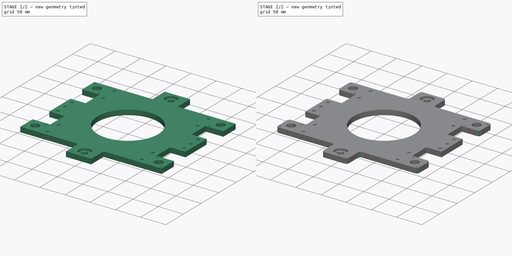
[diagram: build sequence overview — one tinted view per stage of 2, left to right]
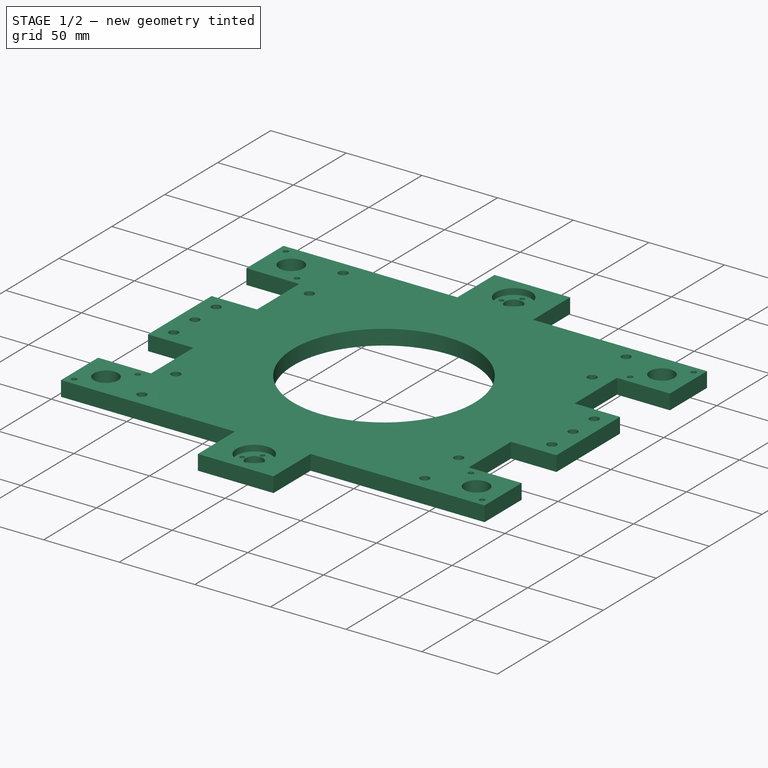
[diagram: stage 1 of 2 — iso view after this stage's code; geometry added in this stage tinted green]
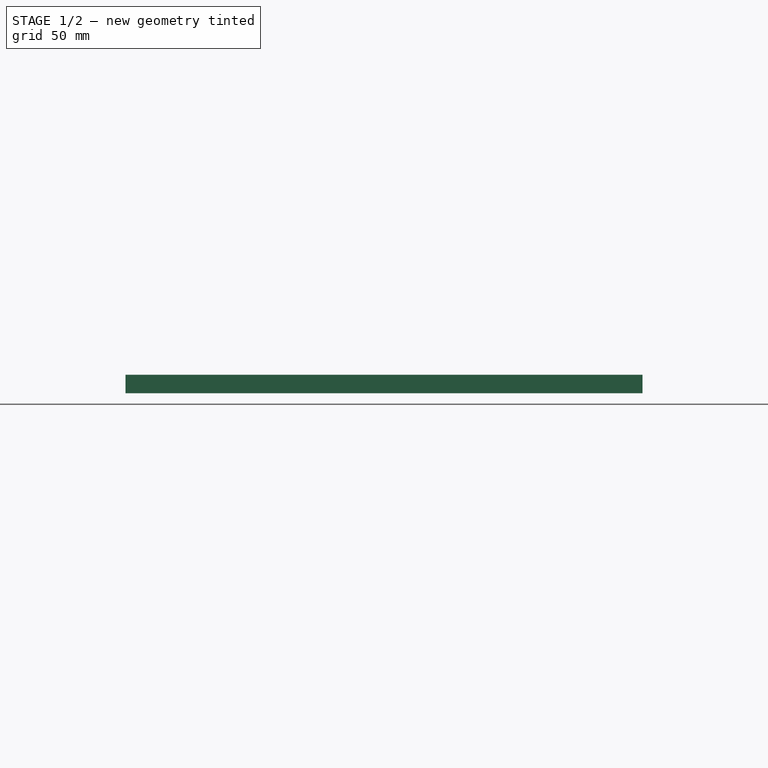
[diagram: stage 1 of 2 — front view after this stage's code; geometry added in this stage tinted green]
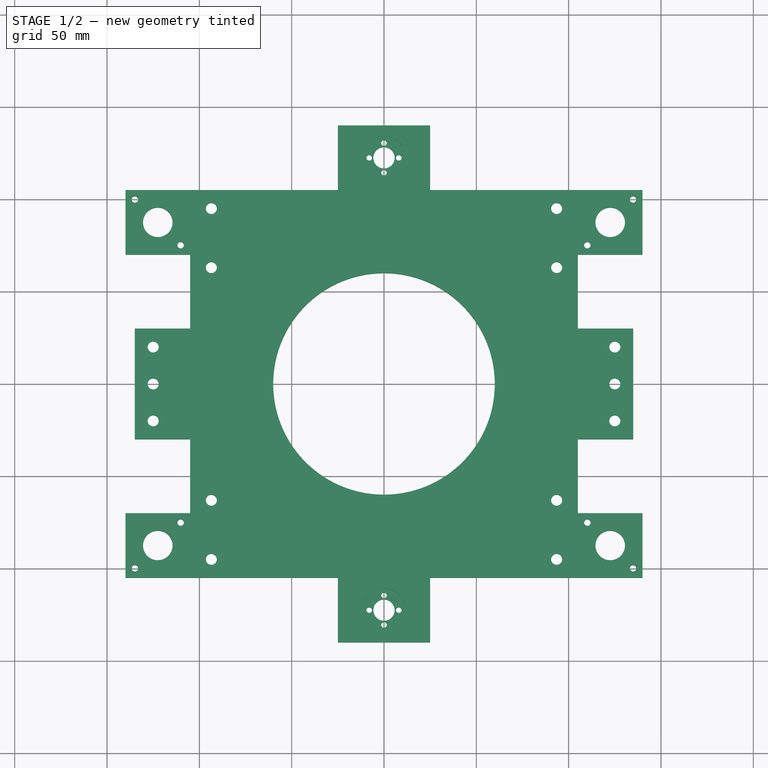
[diagram: stage 1 of 2 — top view after this stage's code; geometry added in this stage tinted green]
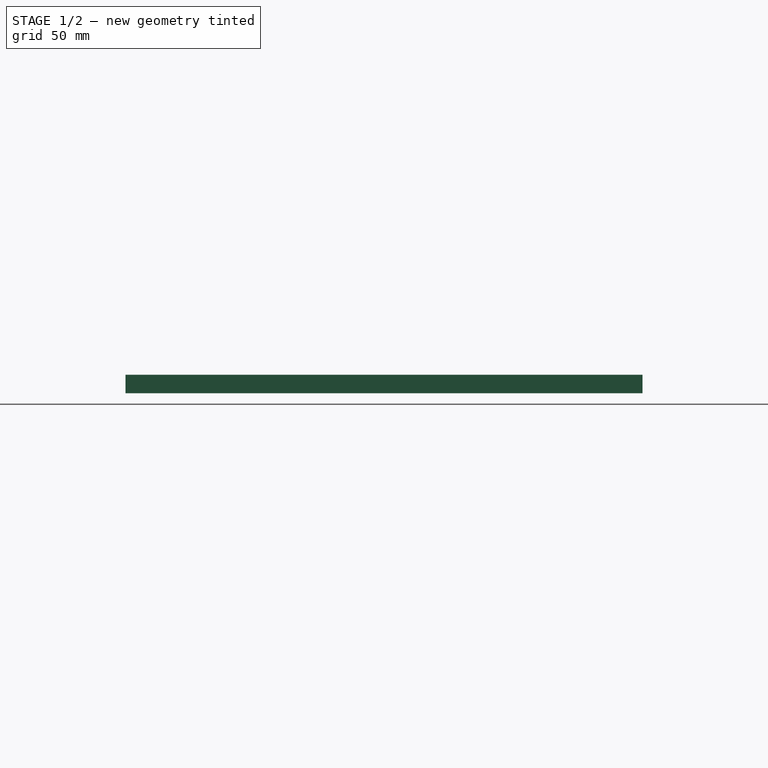
[diagram: stage 1 of 2 — right view after this stage's code; geometry added in this stage tinted green]
FCSTD DOCUMENT  (FreeCAD 1.0R39109 (Git))
Label: bass_slip
License: All rights reserved
LicenseURL: https://en.wikipedia.org/wiki/All_rights_reserved
objects: Sketcher::SketchObject×2, PartDesign::Pad×1, PartDesign::Pocket×1, PartDesign::Fillet×1, PartDesign::Body×1
note: 14 computed .brp shape members not serialized (recipe doc carries the construction recipe); baked Part::Feature solids carry a one-line shape summary decoded from their .brp

FEATURE [Sketcher::SketchObject] Sketch
  ArcFitTolerance = 1e-06
  AttachmentSupport = -> [XY_Plane]
  FullyConstrained = true
  MakeInternals = false
  MapMode = 5
  sketch-geometry (83):
    g0: LineSegment StartX=-105 StartY=70 StartZ=0 EndX=-105 EndY=30 EndZ=0
    g1: LineSegment StartX=-105 StartY=-105 StartZ=0 EndX=-25 EndY=-105 EndZ=0
    g2: LineSegment StartX=105 StartY=-70 StartZ=0 EndX=105 EndY=-30 EndZ=0
    g3: LineSegment StartX=105 StartY=105 StartZ=0 EndX=25 EndY=105 EndZ=0
    g4: Circle CenterX=0 CenterY=0 CenterZ=0 NormalX=0 NormalY=0 NormalZ=1 AngleXU=0 Radius=60
    g5: Circle CenterX=93.5 CenterY=95 CenterZ=0 NormalX=0 NormalY=0 NormalZ=1 AngleXU=0 Radius=3
    g6: Circle CenterX=93.5 CenterY=63 CenterZ=0 NormalX=0 NormalY=0 NormalZ=1 AngleXU=0 Radius=3
    g7: Circle CenterX=93.5 CenterY=-63 CenterZ=0 NormalX=0 NormalY=0 NormalZ=1 AngleXU=0 Radius=3
    g8: Circle CenterX=93.5 CenterY=-95 CenterZ=0 NormalX=0 NormalY=0 NormalZ=1 AngleXU=0 Radius=3
    g9: Circle CenterX=-93.5 CenterY=-63 CenterZ=0 NormalX=0 NormalY=0 NormalZ=1 AngleXU=0 Radius=3
    g10: Circle CenterX=-93.5 CenterY=-95 CenterZ=0 NormalX=0 NormalY=0 NormalZ=1 AngleXU=0 Radius=3
    g11: Circle CenterX=-93.5 CenterY=95 CenterZ=0 NormalX=0 NormalY=0 NormalZ=1 AngleXU=0 Radius=3
    g12: Circle CenterX=-93.5 CenterY=63 CenterZ=0 NormalX=0 NormalY=0 NormalZ=1 AngleXU=0 Radius=3
    g13: LineSegment [constr] StartX=-93.5 StartY=95 StartZ=0 EndX=-93.5 EndY=-95 EndZ=0
    g14: LineSegment [constr] StartX=-93.5 StartY=-95 StartZ=0 EndX=93.5 EndY=-95 EndZ=0
    g15: LineSegment [constr] StartX=93.5 StartY=-95 StartZ=0 EndX=93.5 EndY=95 EndZ=0
    g16: LineSegment [constr] StartX=93.5 StartY=95 StartZ=0 EndX=-93.5 EndY=95 EndZ=0
    g17: LineSegment [constr] StartX=-93.5 StartY=63 StartZ=0 EndX=93.5 EndY=63 EndZ=0
    g18: LineSegment [constr] StartX=-93.5 StartY=-63 StartZ=0 EndX=93.5 EndY=-63 EndZ=0
    g19: LineSegment StartX=105 StartY=105 StartZ=0 EndX=140 EndY=105 EndZ=0
    g20: LineSegment StartX=140 StartY=105 StartZ=0 EndX=140 EndY=70 EndZ=0
    g21: LineSegment StartX=140 StartY=70 StartZ=0 EndX=105 EndY=70 EndZ=0
    g22: LineSegment StartX=105 StartY=-105 StartZ=0 EndX=140 EndY=-105 EndZ=0
    g23: LineSegment StartX=140 StartY=-105 StartZ=0 EndX=140 EndY=-70 EndZ=0
    g24: LineSegment StartX=140 StartY=-70 StartZ=0 EndX=105 EndY=-70 EndZ=0
    g25: LineSegment StartX=-105 StartY=-105 StartZ=0 EndX=-140 EndY=-105 EndZ=0
    g26: LineSegment StartX=-140 StartY=-105 StartZ=0 EndX=-140 EndY=-70 EndZ=0
    g27: LineSegment StartX=-140 StartY=-70 StartZ=0 EndX=-105 EndY=-70 EndZ=0
    g28: LineSegment StartX=-105 StartY=105 StartZ=0 EndX=-140 EndY=105 EndZ=0
    g29: LineSegment StartX=-140 StartY=105 StartZ=0 EndX=-140 EndY=70 EndZ=0
    g30: LineSegment StartX=-140 StartY=70 StartZ=0 EndX=-105 EndY=70 EndZ=0
    g31: Circle CenterX=122.5 CenterY=87.5 CenterZ=0 NormalX=0 NormalY=0 NormalZ=1 AngleXU=0 Radius=8
    g32: Circle CenterX=122.5 CenterY=-87.5 CenterZ=0 NormalX=0 NormalY=0 NormalZ=1 AngleXU=0 Radius=8
    g33: Circle CenterX=-122.5 CenterY=-87.5 CenterZ=0 NormalX=0 NormalY=0 NormalZ=1 AngleXU=0 Radius=8
    g34: Circle CenterX=-122.5 CenterY=87.5 CenterZ=0 NormalX=0 NormalY=0 NormalZ=1 AngleXU=0 Radius=8
    g35: LineSegment StartX=105 StartY=30 StartZ=0 EndX=135 EndY=30 EndZ=0
    g36: LineSegment StartX=135 StartY=30 StartZ=0 EndX=135 EndY=-30 EndZ=0
    g37: LineSegment StartX=135 StartY=-30 StartZ=0 EndX=105 EndY=-30 EndZ=0
    g38: LineSegment StartX=-105 StartY=30 StartZ=0 EndX=-135 EndY=30 EndZ=0
    g39: LineSegment StartX=-135 StartY=30 StartZ=0 EndX=-135 EndY=-30 EndZ=0
    g40: LineSegment StartX=-135 StartY=-30 StartZ=0 EndX=-105 EndY=-30 EndZ=0
    g41: LineSegment StartX=-105 StartY=-30 StartZ=0 EndX=-105 EndY=-70 EndZ=0
    g42: LineSegment StartX=105 StartY=30 StartZ=0 EndX=105 EndY=70 EndZ=0
    g43: Circle CenterX=125 CenterY=20 CenterZ=0 NormalX=0 NormalY=0 NormalZ=1 AngleXU=0 Radius=3
    g44: Circle CenterX=125 CenterY=0 CenterZ=0 NormalX=0 NormalY=0 NormalZ=1 AngleXU=0 Radius=3
    g45: Circle CenterX=125 CenterY=-20 CenterZ=0 NormalX=0 NormalY=0 NormalZ=1 AngleXU=0 Radius=3
    g46: Circle CenterX=-125 CenterY=20 CenterZ=0 NormalX=0 NormalY=0 NormalZ=1 AngleXU=0 Radius=3
    g47: Circle CenterX=-125 CenterY=0 CenterZ=0 NormalX=0 NormalY=0 NormalZ=1 AngleXU=0 Radius=3
    g48: Circle CenterX=-125 CenterY=-20 CenterZ=0 NormalX=0 NormalY=0 NormalZ=1 AngleXU=0 Radius=3
    g49: LineSegment [constr] StartX=-125 StartY=-20 StartZ=0 EndX=-125 EndY=20 EndZ=0
    g50: LineSegment [constr] StartX=125 StartY=-20 StartZ=0 EndX=125 EndY=20 EndZ=0
    g51: Circle CenterX=110.125 CenterY=-75.1247 CenterZ=0 NormalX=0 NormalY=0 NormalZ=1 AngleXU=0 Radius=1.75
    g52: Circle CenterX=134.873 CenterY=-99.8735 CenterZ=0 NormalX=0 NormalY=0 NormalZ=1 AngleXU=0 Radius=1.75
    g53: LineSegment [constr] StartX=105 StartY=-70 StartZ=0 EndX=140 EndY=-105 EndZ=0
    g54: LineSegment [constr] StartX=105 StartY=70 StartZ=0 EndX=140 EndY=105 EndZ=0
    g55: LineSegment [constr] StartX=-105 StartY=70 StartZ=0 EndX=-140 EndY=105 EndZ=0
    g56: LineSegment [constr] StartX=-105 StartY=-70 StartZ=0 EndX=-140 EndY=-105 EndZ=0
    g57: Circle CenterX=110.125 CenterY=75.1247 CenterZ=0 NormalX=0 NormalY=0 NormalZ=1 AngleXU=0 Radius=1.75
    g58: Circle CenterX=134.873 CenterY=99.8735 CenterZ=0 NormalX=0 NormalY=0 NormalZ=1 AngleXU=0 Radius=1.75
    g59: Circle CenterX=-110.125 CenterY=75.1247 CenterZ=0 NormalX=0 NormalY=0 NormalZ=1 AngleXU=0 Radius=1.75
    g60: Circle CenterX=-134.873 CenterY=99.8735 CenterZ=0 NormalX=0 NormalY=0 NormalZ=1 AngleXU=0 Radius=1.75
    g61: Circle CenterX=-110.125 CenterY=-75.1247 CenterZ=0 NormalX=0 NormalY=0 NormalZ=1 AngleXU=0 Radius=1.75
    g62: Circle CenterX=-134.873 CenterY=-99.8735 CenterZ=0 NormalX=0 NormalY=0 NormalZ=1 AngleXU=0 Radius=1.75
    g63: LineSegment StartX=-25 StartY=105 StartZ=0 EndX=-25 EndY=140 EndZ=0
    g64: LineSegment StartX=-25 StartY=140 StartZ=0 EndX=25 EndY=140 EndZ=0
    g65: LineSegment StartX=25 StartY=140 StartZ=0 EndX=25 EndY=105 EndZ=0
    g66: LineSegment StartX=25 StartY=-105 StartZ=0 EndX=25 EndY=-140 EndZ=0
    g67: LineSegment StartX=25 StartY=-140 StartZ=0 EndX=-25 EndY=-140 EndZ=0
    g68: LineSegment StartX=-25 StartY=-140 StartZ=0 EndX=-25 EndY=-105 EndZ=0
    g69: Circle [constr] CenterX=0 CenterY=122.5 CenterZ=0 NormalX=0 NormalY=0 NormalZ=1 AngleXU=0 Radius=8
    g70: LineSegment StartX=-25 StartY=105 StartZ=0 EndX=-105 EndY=105 EndZ=0
    g71: Circle CenterX=0 CenterY=122.5 CenterZ=0 NormalX=0 NormalY=0 NormalZ=1 AngleXU=0 Radius=5.75
    g72: LineSegment StartX=25 StartY=-105 StartZ=0 EndX=105 EndY=-105 EndZ=0
    g73: Circle [constr] CenterX=0 CenterY=-122.5 CenterZ=0 NormalX=0 NormalY=0 NormalZ=1 AngleXU=0 Radius=8
    g74: Circle CenterX=0 CenterY=-122.5 CenterZ=0 NormalX=0 NormalY=0 NormalZ=1 AngleXU=0 Radius=5.75
    g75: Circle CenterX=8 CenterY=-122.5 CenterZ=0 NormalX=0 NormalY=0 NormalZ=1 AngleXU=0 Radius=1.5
    g76: Circle CenterX=0 CenterY=-114.5 CenterZ=0 NormalX=0 NormalY=0 NormalZ=1 AngleXU=0 Radius=1.5
    g77: Circle CenterX=-8 CenterY=-122.5 CenterZ=0 NormalX=0 NormalY=0 NormalZ=1 AngleXU=0 Radius=1.5
    g78: Circle CenterX=0 CenterY=-130.5 CenterZ=0 NormalX=0 NormalY=0 NormalZ=1 AngleXU=0 Radius=1.5
    g79: Circle CenterX=0 CenterY=130.5 CenterZ=0 NormalX=0 NormalY=0 NormalZ=1 AngleXU=0 Radius=1.5
    g80: Circle CenterX=8 CenterY=122.5 CenterZ=0 NormalX=0 NormalY=0 NormalZ=1 AngleXU=0 Radius=1.5
    g81: Circle CenterX=0 CenterY=114.5 CenterZ=0 NormalX=0 NormalY=0 NormalZ=1 AngleXU=0 Radius=1.5
    g82: Circle CenterX=-8 CenterY=122.5 CenterZ=0 NormalX=0 NormalY=0 NormalZ=1 AngleXU=0 Radius=1.5
  constraints (238):
    c: Vertical(g0)
    c: Vertical(g2)
    c: Horizontal(g1)
    c: Horizontal(g3)
    c: Distance(g70,g3) = 210
    c: Distance(g1,g70) = 210
    c: DistanceY(g-1,g3) = 105
    c: DistanceX(g-1,g3) = 105
    c: Diameter(g4) = 120
    c: Coincident(g4,g-1)
    c: Coincident(g13,g14)
    c: Coincident(g14,g15)
    c: Coincident(g15,g16)
    c: Coincident(g16,g13)
    c: Vertical(g13)
    c: Vertical(g15)
    c: Horizontal(g14)
    c: Horizontal(g16)
    c: Coincident(g14,g8)
    c: Coincident(g10,g13)
    c: PointOnObject(g9,g13)
    c: PointOnObject(g7,g15)
    c: PointOnObject(g6,g15)
    c: Coincident(g5,g15)
    c: Coincident(g11,g13)
    c: PointOnObject(g12,g13)
    c: Coincident(g17,g12)
    c: Coincident(g17,g6)
    c: Horizontal(g17)
    c: Coincident(g18,g7)
    c: Horizontal(g18)
    c: DistanceY(g8,g7) = 32
    c: DistanceY(g6,g5) = 32
    c: Equal(g11,g12)
    c: Equal(g5,g6)
    c: Equal(g7,g8)
    c: Equal(g8,g10)
    c: Equal(g10,g9)
    c: Equal(g12,g9)
    c: Equal(g7,g6)
    c: Diameter(g8) = 6
    c: DistanceY(g8,g5) = 190
    c: DistanceY(g5,g3) = 10
    c: DistanceX(g10,g8) = 187
    c: Distance(g4,g15) = 93.5
    c: Coincident(g9,g18)
    c: Coincident(g3,g19)
    c: Horizontal(g19)
    c: Coincident(g19,g20)
    c: Vertical(g20)
    c: Coincident(g20,g21)
    c: Coincident(g72,g22)
    c: Horizontal(g22)
    c: Coincident(g22,g23)
    c: Vertical(g23)
    c: Coincident(g23,g24)
    c: Horizontal(g24)
    c: Coincident(g1,g25)
    c: Horizontal(g25)
    c: Coincident(g25,g26)
    c: Vertical(g26)
    c: Coincident(g26,g27)
    c: Horizontal(g27)
    c: Coincident(g70,g28)
    c: Coincident(g28,g29)
    c: Vertical(g29)
    c: Coincident(g29,g30)
    c: Horizontal(g28)
    c: Horizontal(g30)
    c: Horizontal(g21)
    c: Vertical(g29,g26)
    c: Vertical(g23,g20)
    c: Horizontal(g20,g30)
    c: Horizontal(g24,g27)
    c: Equal(g30,g21)
    c: Equal(g23,g20)
    c: DistanceX(g21,g21) = 35
    c: DistanceY(g20,g20) = 35
    c: Coincident(g42,g21)
    c: Coincident(g2,g24)
    c: Coincident(g41,g27)
    c: Coincident(g0,g30)
    c: Vertical(g42,g3)
    c: Vertical(g1,g41)
    c: Vertical(g72,g2)
    c: Vertical(g0,g70)
    c: Diameter(g31) = 16
    c: DistanceX(g31,g20) = 17.5
    c: DistanceY(g20,g31) = 17.5
    c: Equal(g34,g31)
    c: Equal(g31,g32)
    c: Equal(g32,g33)
    c: Horizontal(g31,g34)
    c: Vertical(g34,g33)
    c: Horizontal(g33,g32)
    c: DistanceY(g22,g32) = 17.5
    c: DistanceX(g26,g33) = 17.5
    c: Vertical(g32,g31)
    c: PointOnObject(g35,g42)
    c: Horizontal(g35)
    c: Coincident(g35,g36)
    c: Vertical(g36)
    c: Coincident(g36,g37)
    c: Horizontal(g38)
    c: Coincident(g38,g39)
    c: Coincident(g39,g40)
    c: PointOnObject(g40,g41)
    c: Horizontal(g40)
    c: Vertical(g39)
    c: Horizontal(g37)
    c: Horizontal(g37,g40)
    c: Horizontal(g38,g35)
    c: Equal(g38,g35)
    c: Coincident(g0,g38)
    c: PointOnObject(g41,g40)
    c: Coincident(g2,g37)
    c: PointOnObject(g42,g35)
    c: Vertical(g42)
    c: Vertical(g41)
    c: DistanceY(g36,g36) = 60
    c: DistanceX(g37,g37) = 30
    c: Vertical(g2,g35)
    c: DistanceY(g36,g-1) = 30
    c: Vertical(g40,g0)
    c: Coincident(g49,g48)
    c: Coincident(g49,g46)
    c: Coincident(g50,g45)
    c: Coincident(g50,g43)
    c: Vertical(g50)
    c: PointOnObject(g44,g50)
    c: Vertical(g49)
    c: PointOnObject(g47,g49)
    c: DistanceY(g49,g49) = 40
    c: DistanceY(g48,g-1) = 20
    c: Horizontal(g47,g4)
    c: Horizontal(g44,g4)
    c: Horizontal(g48,g45)
    c: Horizontal(g43,g46)
    c: DistanceX(g45,g36) = 10
    c: DistanceX(g39,g48) = 10
    c: Diameter(g46) = 6
    c: Equal(g47,g46)
    c: Equal(g47,g48)
    c: Equal(g45,g44)
    c: Equal(g44,g43)
    c: Equal(g43,g46)
    c: Equal(g52,g51)
    c: Diameter(g51) = 3.5
    c: Coincident(g53,g2)
    c: Coincident(g53,g22)
    c: PointOnObject(g51,g53)
    c: PointOnObject(g52,g53)
    c: Distance(g51,g52) = 35
    c: Distance(g52,g22) = 7.25
    c: Coincident(g54,g21)
    c: Coincident(g54,g19)
    c: Coincident(g55,g0)
    c: Coincident(g55,g28)
    c: Coincident(g56,g27)
    c: Coincident(g56,g25)
    c: PointOnObject(g57,g54)
    c: PointOnObject(g58,g54)
    c: PointOnObject(g59,g55)
    c: PointOnObject(g60,g55)
    c: PointOnObject(g61,g56)
    c: PointOnObject(g62,g56)
    c: Equal(g62,g61)
    c: Equal(g61,g59)
    c: Equal(g59,g60)
    c: Equal(g59,g57)
    c: Equal(g57,g58)
    c: Equal(g58,g51)
    c: Horizontal(g57,g59)
    c: Horizontal(g60,g58)
    c: Vertical(g58,g52)
    c: Vertical(g51,g57)
    c: Horizontal(g51,g61)
    c: Horizontal(g62,g52)
    c: PointOnObject(g63,g70)
    c: Coincident(g63,g64)
    c: Horizontal(g64)
    c: Coincident(g64,g65)
    c: Vertical(g65)
    c: PointOnObject(g66,g72)
    c: Vertical(g66)
    c: Coincident(g66,g67)
    c: Horizontal(g67)
    c: Coincident(g67,g68)
    c: Vertical(g68)
    c: Vertical(g63)
    c: Vertical(g63,g68)
    c: Vertical(g66,g65)
    c: Diameter(g69) = 16
    c: PointOnObject(g69,g-2)
    c: DistanceX(g64,g64) = 50
    c: DistanceY(g65,g65) = 35
    c: Coincident(g3,g65)
    c: PointOnObject(g70,g63)
    c: DistanceX(g4,g3) = 25
    c: Horizontal(g63,g3)
    c: Horizontal(g70)
    c: DistanceY(g69,g64) = 17.5
    c: Diameter(g71) = 11.5
    c: Coincident(g71,g69)
    c: Coincident(g1,g68)
    c: PointOnObject(g72,g66)
    c: Horizontal(g72)
    c: Horizontal(g66,g1)
    c: Equal(g63,g68)
    c: Diameter(g73) = 16
    c: PointOnObject(g73,g-2)
    c: DistanceY(g66,g73) = 17.5
    c: Coincident(g74,g73)
    c: Equal(g74,g71)
    c: Diameter(g75) = 3
    c: PointOnObject(g75,g73)
    c: Diameter(g76) = 3
    c: PointOnObject(g76,g73)
    c: Diameter(g77) = 3
    c: PointOnObject(g77,g73)
    c: Diameter(g78) = 3
    c: PointOnObject(g78,g73)
    c: Horizontal(g75,g77)
    c: Horizontal(g77,g73)
    c: Vertical(g76,g78)
    c: Vertical(g78,g73)
    c: Diameter(g79) = 3
    c: PointOnObject(g79,g69)
    c: Diameter(g80) = 3
    c: PointOnObject(g80,g69)
    c: Diameter(g81) = 3
    c: PointOnObject(g81,g69)
    c: Diameter(g82) = 3
    c: PointOnObject(g82,g69)
    c: Horizontal(g82,g80)
    c: Vertical(g79,g81)
    c: Vertical(g81,g69)
    c: Horizontal(g69,g80)
FEATURE [PartDesign::Pad] Pad
  Direction = (0,0,1)
  Length = 10
  Length2 = 10
  Profile = -> Sketch
  ReferenceAxis = -> Sketch [N_Axis]
  Refine = true
  Suppressed = false
  Type = 0
FEATURE [Sketcher::SketchObject] Sketch001
  ArcFitTolerance = 1e-06
  AttachmentSupport = -> [Pad]
  FullyConstrained = true
  MakeInternals = false
  MapMode = 5
  Placement = pos=(0,0,10) rot=(0,0,1;0rad)
  sketch-geometry (4):
    g0: Circle CenterX=0 CenterY=122.5 CenterZ=0 NormalX=0 NormalY=0 NormalZ=1 AngleXU=0 Radius=11.75
    g1: Circle [constr] CenterX=0 CenterY=122.5 CenterZ=0 NormalX=0 NormalY=0 NormalZ=1 AngleXU=0 Radius=5.75
    g2: Circle [constr] CenterX=0 CenterY=-122.5 CenterZ=0 NormalX=0 NormalY=0 NormalZ=1 AngleXU=0 Radius=5.75
    g3: Circle CenterX=0 CenterY=-122.5 CenterZ=0 NormalX=0 NormalY=0 NormalZ=1 AngleXU=0 Radius=11.75
  constraints (10):
    c: PointOnObject(g0,g-2)
    c: Diameter(g1) = 11.5
    c: Coincident(g1,g0)
    c: Diameter(g0) = 23.5
    c: DistanceY(g-1,g0) = 122.5
    c: Diameter(g2) = 11.5
    c: PointOnObject(g2,g-2)
    c: DistanceY(g2,g-1) = 122.5
    c: Diameter(g3) = 23.5
    c: Coincident(g3,g2)
FEATURE [PartDesign::Pocket] Pocket
  BaseFeature = -> Pad
  Direction = (0,0,-1)
  Length = 4
  Length2 = 5
  Profile = -> Sketch001
  ReferenceAxis = -> Sketch001 [N_Axis]
  Refine = true
  Suppressed = false
  Type = 0
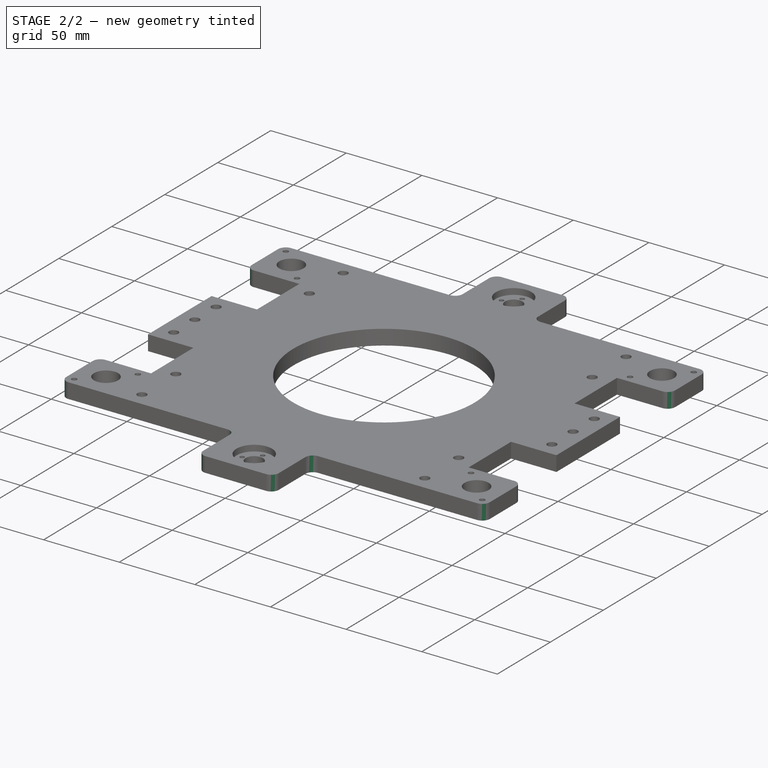
[diagram: stage 2 of 2 — iso view after this stage's code; geometry added in this stage tinted green]
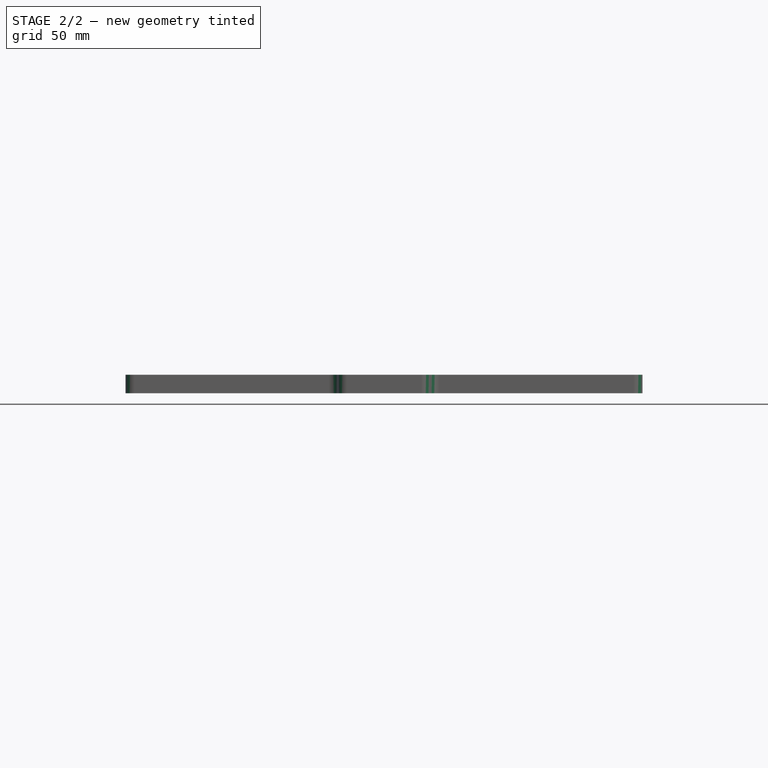
[diagram: stage 2 of 2 — front view after this stage's code; geometry added in this stage tinted green]
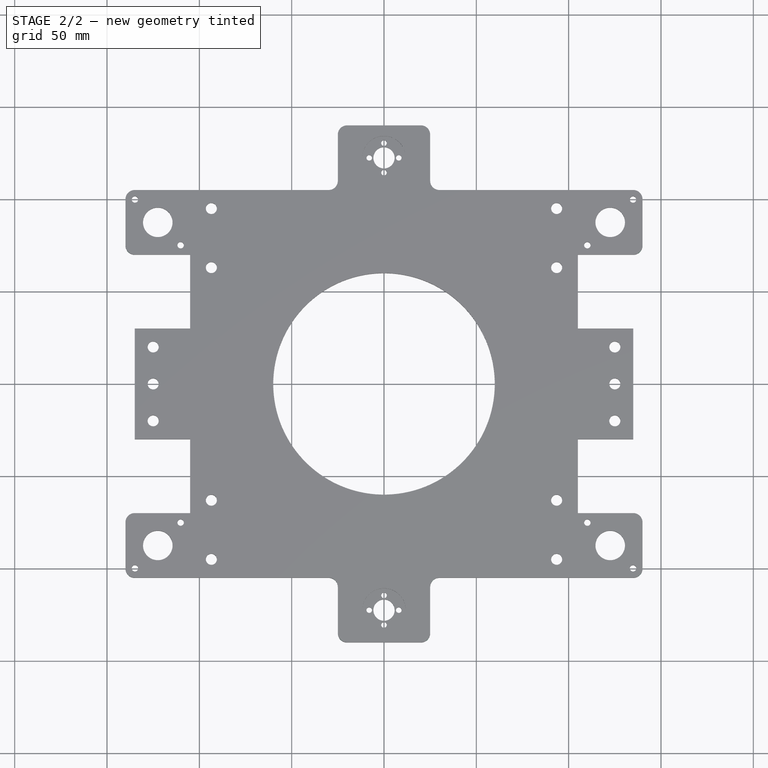
[diagram: stage 2 of 2 — top view after this stage's code; geometry added in this stage tinted green]
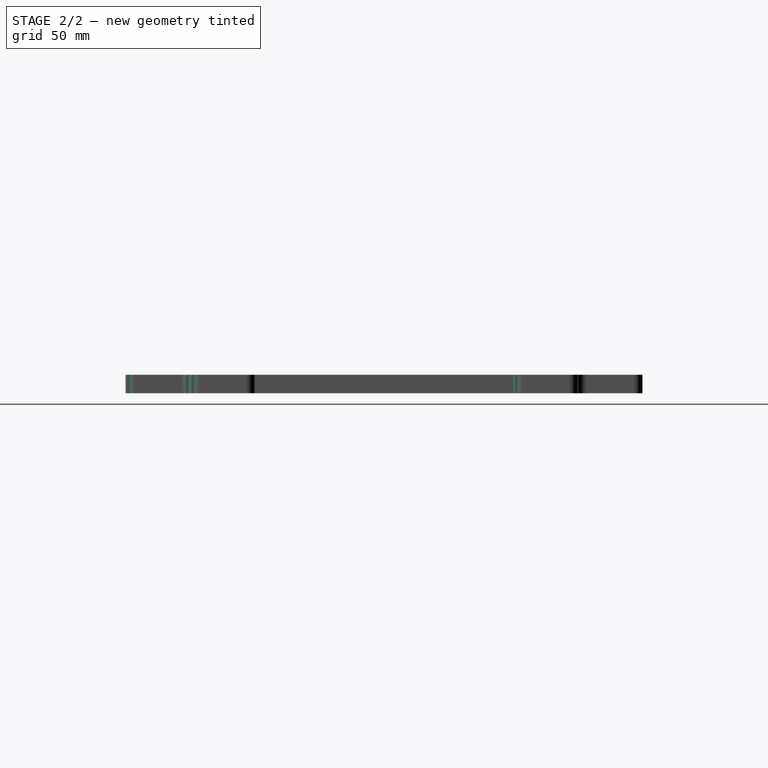
[diagram: stage 2 of 2 — right view after this stage's code; geometry added in this stage tinted green]
FEATURE [PartDesign::Fillet] Fillet
  Base = -> Pocket [Edge138,Edge137,Edge136,Edge135,Edge134,Edge133,Edge2,Edge1,Edge5,Edge127,Edge150,Edge149,Edge148,Edge147,Edge140,Edge139]
  BaseFeature = -> Pocket
  Radius = 5
  Refine = true
  SupportTransform = false
  Suppressed = false
  UseAllEdges = false
FEATURE [PartDesign::Body] Body
  AllowCompound = false
  Group = -> [Sketch,Pad,Sketch001,Pocket,Fillet]
  Origin = -> Origin
  Tip = -> Fillet
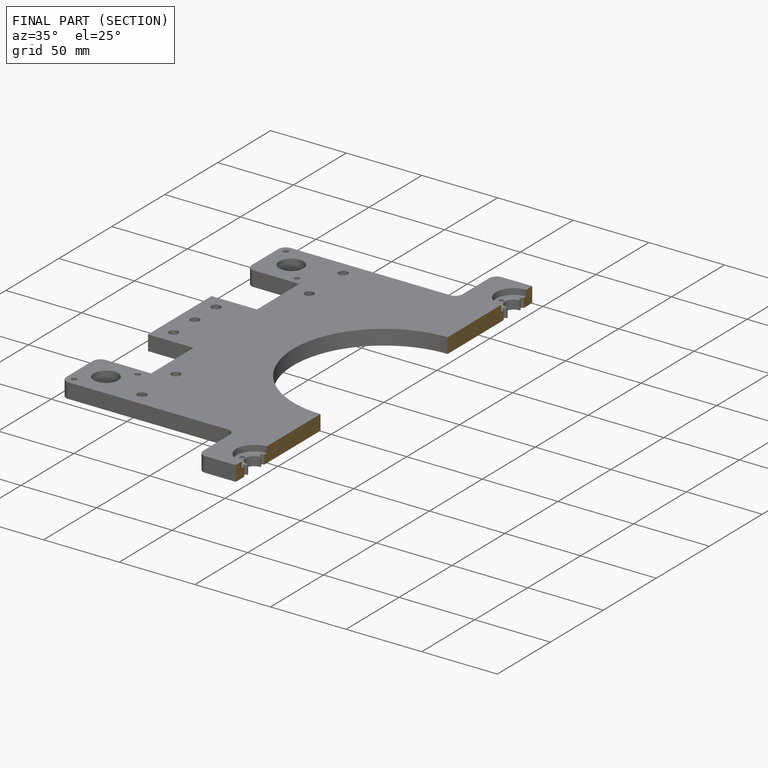
[diagram: finished part — half-section view (interior)]
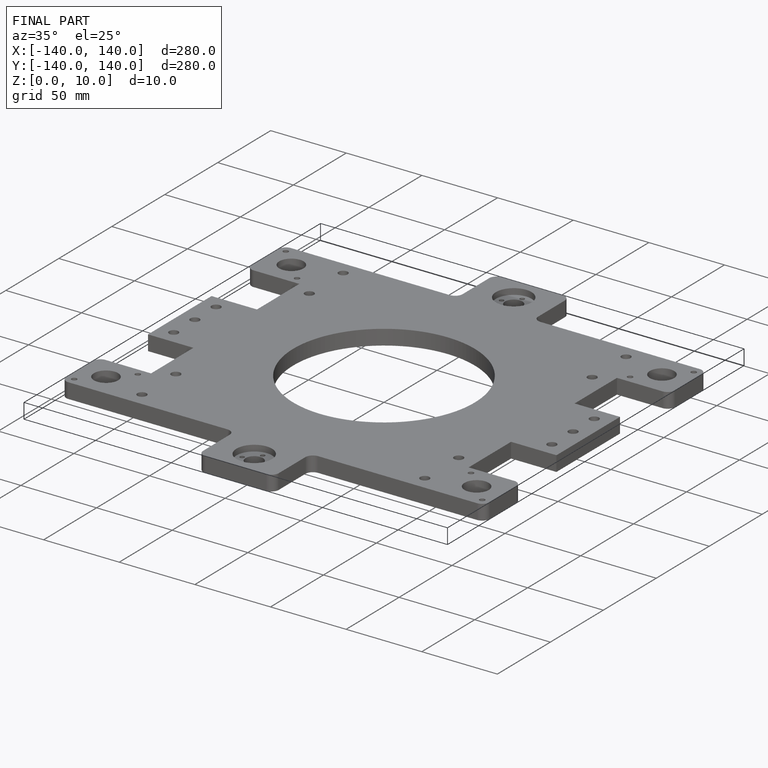
[diagram: finished part — iso view with bounding-box wireframe]
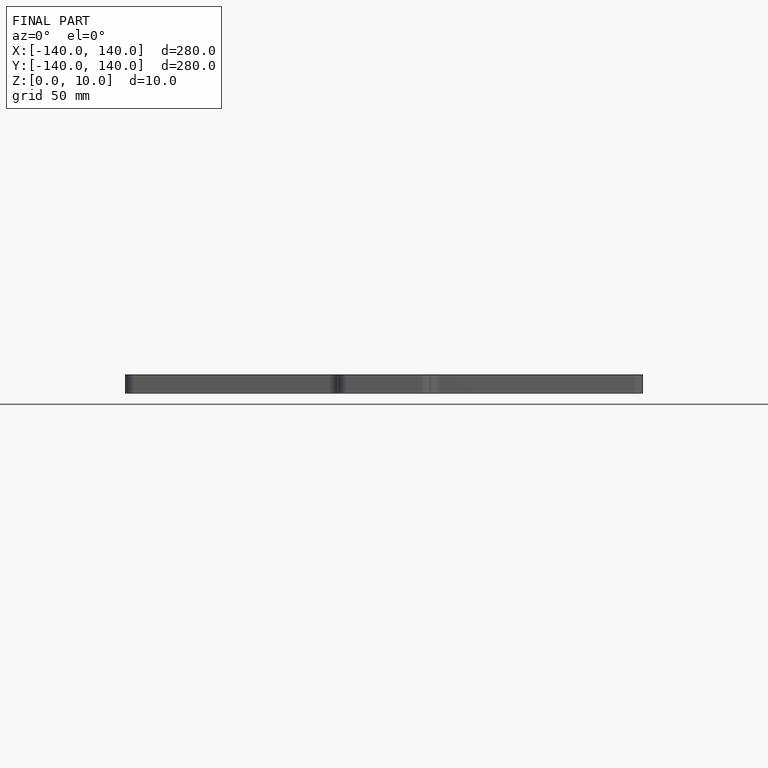
[diagram: finished part — front view with bounding-box wireframe]
